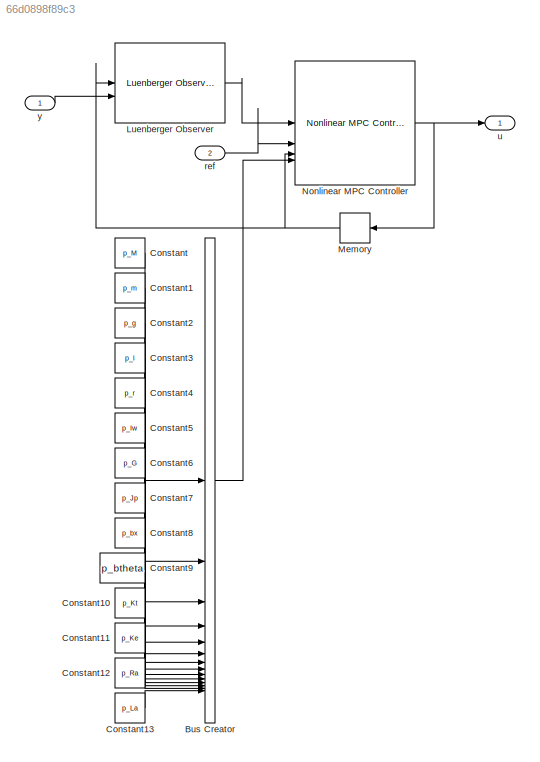
MODEL slx_66d0898f89c3
KIND model
CONFIG AbsTol = auto
CONFIG EnableMultiTasking = off
CONFIG FixedStep = auto
CONFIG MaxStep = auto
CONFIG MinStep = auto
CONFIG RelTol = 1e-3
CONFIG SampleTimeConstraint = Unconstrained
CONFIG SolverName = FixedStepAuto
CONFIG StartTime = 0.0
CONFIG StopTime = 10.0
BLOCK [BusCreator] Bus Creator
  DisplayOption = bar
  InheritFromInputs = off
  Inputs = 14
  OutDataTypeStr = Bus: ParamsBus
BLOCK [Constant] Constant
  Value = p_M
BLOCK [Constant] Constant1
  Value = p_m
BLOCK [Constant] Constant10
  Value = p_Kt
BLOCK [Constant] Constant11
  Value = p_Ke
BLOCK [Constant] Constant12
  Value = p_Ra
BLOCK [Constant] Constant13
  Value = p_La
BLOCK [Constant] Constant2
  Value = p_g
BLOCK [Constant] Constant3
  Value = p_l
BLOCK [Constant] Constant4
  Value = p_r
BLOCK [Constant] Constant5
  Value = p_Iw
BLOCK [Constant] Constant6
  Value = p_G
BLOCK [Constant] Constant7
  Value = p_Jp
BLOCK [Constant] Constant8
  Value = p_bx
BLOCK [Constant] Constant9
  Value = p_btheta
BLOCK [Reference] Luenberger Observer  REF=eeLuenbergerObserver/Luenberger Observer
  LibrarySourceBlock = ee_sl_lib/Observers/Luenberger Observer
  SourceBlock = eeLuenbergerObserver/Luenberger Observer
  SourceType = Luenberger Observer
BLOCK [Memory] Memory
  NameLocation = top
BLOCK [Reference] Nonlinear MPC Controller  REF=mpclib/Nonlinear MPC Controller  (lib defined in mdl_ae329e0e0455)
  SourceBlock = mpclib/Nonlinear MPC Controller
  SourceType = NonlinearMPC
BLOCK [Inport] ref
  Port = 2
  PortDimensions = [1; 2]
BLOCK [Outport] u
BLOCK [Inport] y
  PortDimensions = [2; 1]
LINE Bus Creator:1 -> Nonlinear MPC Controller:4
LINE Constant10:1 -> Bus Creator:11
LINE Constant11:1 -> Bus Creator:12
LINE Constant12:1 -> Bus Creator:13
LINE Constant13:1 -> Bus Creator:14
LINE Constant1:1 -> Bus Creator:2
LINE Constant2:1 -> Bus Creator:3
LINE Constant3:1 -> Bus Creator:4
LINE Constant4:1 -> Bus Creator:5
LINE Constant5:1 -> Bus Creator:6
LINE Constant6:1 -> Bus Creator:7
LINE Constant7:1 -> Bus Creator:8
LINE Constant8:1 -> Bus Creator:9
LINE Constant9:1 -> Bus Creator:10
LINE Constant:1 -> Bus Creator:1
LINE Luenberger Observer:1 -> Nonlinear MPC Controller:1
NET Memory:1 -> Luenberger Observer:1, Nonlinear MPC Controller:3
NET Nonlinear MPC Controller:1 -> Memory:1, u:1
LINE ref:1 -> Nonlinear MPC Controller:2
LINE y:1 -> Luenberger Observer:2
note: NET lines group one-source signal fan-out (src -> all destinations, sorted); 1:1 wires keep LINE
